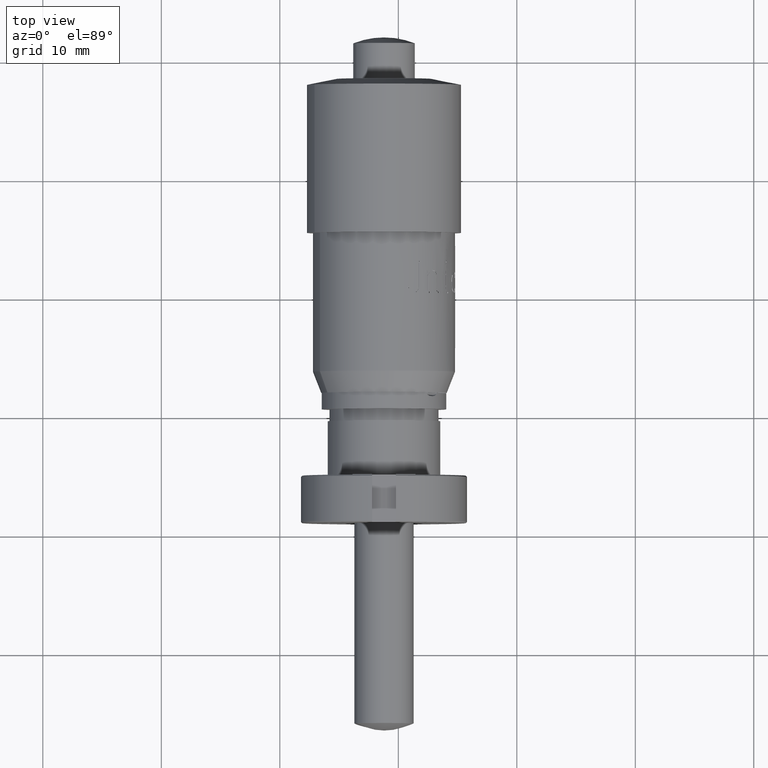
[diagram: clean part render]
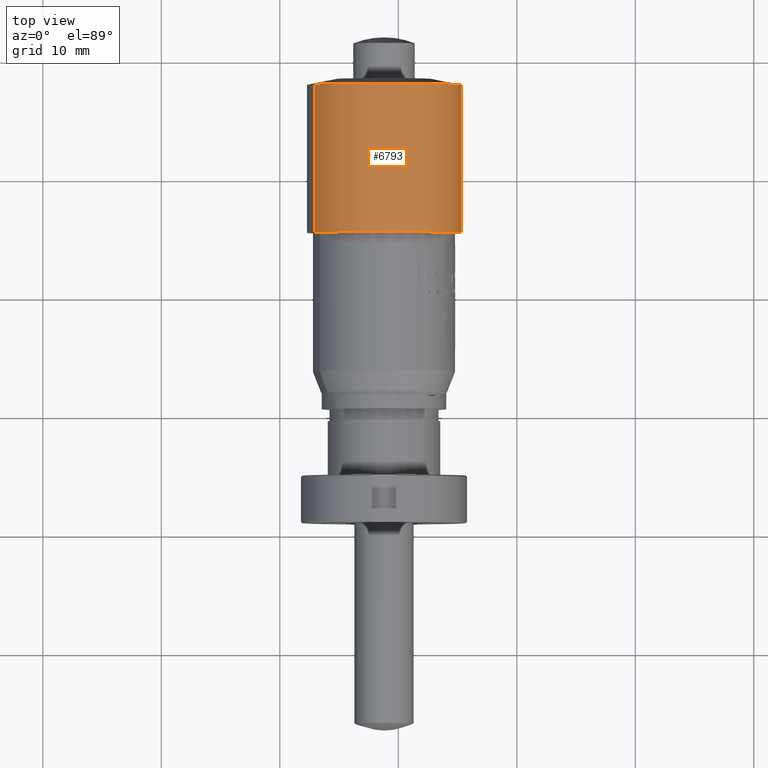
[diagram: same view with one face highlighted and labeled with its STEP entity id]
A machine part, top view. The second image highlights one B-rep face of the part: STEP entity #6793.
In plain terms, the highlighted cylindrical surface (partial cylindrical patch) has radius 6.5 mm, axis along (-0, 1, -0).
Its self-contained STEP definition (entity closure, byte-faithful):
#892 = CYLINDRICAL_SURFACE ( 'NONE', #13401, 6.500000000000007100 ) ;
#1033 = DIRECTION ( 'NONE',  ( -0.9019442983237868600, 0.0000000000000000000, 0.4318523853369479700 ) ) ;
#1415 = EDGE_LOOP ( 'NONE', ( #8122, #12576, #6672, #12868 ) ) ;
#1627 = CARTESIAN_POINT ( 'NONE',  ( 24.65540680316384600, 25.53603129132213900, 15.79842433474804000 ) ) ;
#2361 = VECTOR ( 'NONE', #8039, 1000.000000000000000 ) ;
#3268 = VERTEX_POINT ( 'NONE', #13396 ) ;
#3349 = VERTEX_POINT ( 'NONE', #1627 ) ;
#3412 = CARTESIAN_POINT ( 'NONE',  ( 18.79276886405921600, 38.03603129132215300, 18.60546483943822700 ) ) ;
#4029 = VERTEX_POINT ( 'NONE', #12371 ) ;
#4314 = EDGE_CURVE ( 'NONE', #7541, #4029, #13641, .T. ) ;
#4480 = DIRECTION ( 'NONE',  ( -0.9019442983237868600, 0.0000000000000000000, 0.4318523853369479700 ) ) ;
#4723 = CARTESIAN_POINT ( 'NONE',  ( 12.93013092495458900, 38.03603129132215300, 21.41250534412839500 ) ) ;
#5046 = FACE_OUTER_BOUND ( 'NONE', #1415, .T. ) ;
#5860 = CARTESIAN_POINT ( 'NONE',  ( 24.65540680316385300, 54.57705436052977900, 15.79842433474803300 ) ) ;
#6572 = VECTOR ( 'NONE', #13426, 1000.000000000000000 ) ;
#6672 = ORIENTED_EDGE ( 'NONE', *, *, #4314, .F. ) ;
#6793 = ADVANCED_FACE ( 'NONE', ( #5046 ), #892, .T. ) ;
#6794 = EDGE_CURVE ( 'NONE', #3349, #4029, #12307, .T. ) ;
#7398 = DIRECTION ( 'NONE',  ( -1.101876641632675700E-016, 1.000000000000000000, -2.975472225002335400E-018 ) ) ;
#7541 = VERTEX_POINT ( 'NONE', #4723 ) ;
#7599 = AXIS2_PLACEMENT_3D ( 'NONE', #3412, #10928, #4480 ) ;
#8039 = DIRECTION ( 'NONE',  ( -1.101876641632675700E-016, 1.000000000000000000, -2.975472225002335400E-018 ) ) ;
#8122 = ORIENTED_EDGE ( 'NONE', *, *, #11897, .T. ) ;
#9067 = EDGE_CURVE ( 'NONE', #3268, #7541, #13428, .T. ) ;
#9153 = CARTESIAN_POINT ( 'NONE',  ( 12.93013092495461100, 54.57705436052977900, 21.41250534412836300 ) ) ;
#10175 = DIRECTION ( 'NONE',  ( -0.9019442983237868600, 0.0000000000000000000, 0.4318523853369479700 ) ) ;
#10928 = DIRECTION ( 'NONE',  ( -1.101876641632675700E-016, 1.000000000000000000, -2.975472225002335400E-018 ) ) ;
#11215 = DIRECTION ( 'NONE',  ( -1.101876641632675700E-016, 1.000000000000000000, -2.975472225002335400E-018 ) ) ;
#11897 = EDGE_CURVE ( 'NONE', #3268, #3349, #12453, .T. ) ;
#12296 = CARTESIAN_POINT ( 'NONE',  ( 18.79276886405923000, 54.57705436052977900, 18.60546483943819900 ) ) ;
#12307 = LINE ( 'NONE', #5860, #6572 ) ;
#12371 = CARTESIAN_POINT ( 'NONE',  ( 24.65540680316383200, 38.03603129132215300, 15.79842433474806100 ) ) ;
#12453 = CIRCLE ( 'NONE', #12527, 6.500000000000007100 ) ;
#12527 = AXIS2_PLACEMENT_3D ( 'NONE', #13873, #7398, #1033 ) ;
#12576 = ORIENTED_EDGE ( 'NONE', *, *, #6794, .T. ) ;
#12868 = ORIENTED_EDGE ( 'NONE', *, *, #9067, .F. ) ;
#13396 = CARTESIAN_POINT ( 'NONE',  ( 12.93013092495460700, 25.53603129132213900, 21.41250534412835900 ) ) ;
#13401 = AXIS2_PLACEMENT_3D ( 'NONE', #12296, #11215, #10175 ) ;
#13426 = DIRECTION ( 'NONE',  ( -1.101876641632675700E-016, 1.000000000000000000, -2.975472225002335400E-018 ) ) ;
#13428 = LINE ( 'NONE', #9153, #2361 ) ;
#13641 = CIRCLE ( 'NONE', #7599, 6.500000000000007100 ) ;
#13873 = CARTESIAN_POINT ( 'NONE',  ( 18.79276886405922700, 25.53603129132213900, 18.60546483943819500 ) ) ;